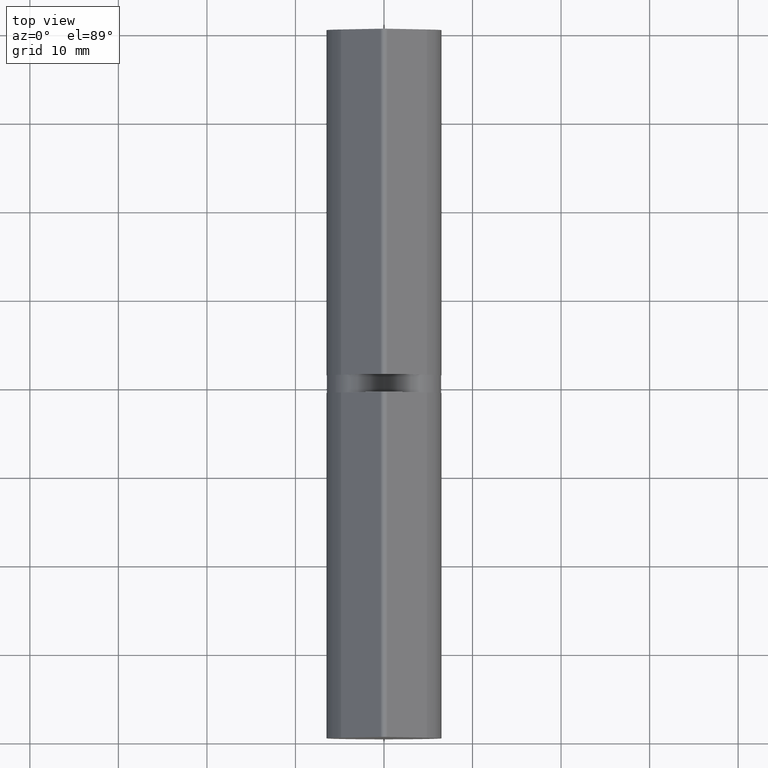
[diagram: clean part render]
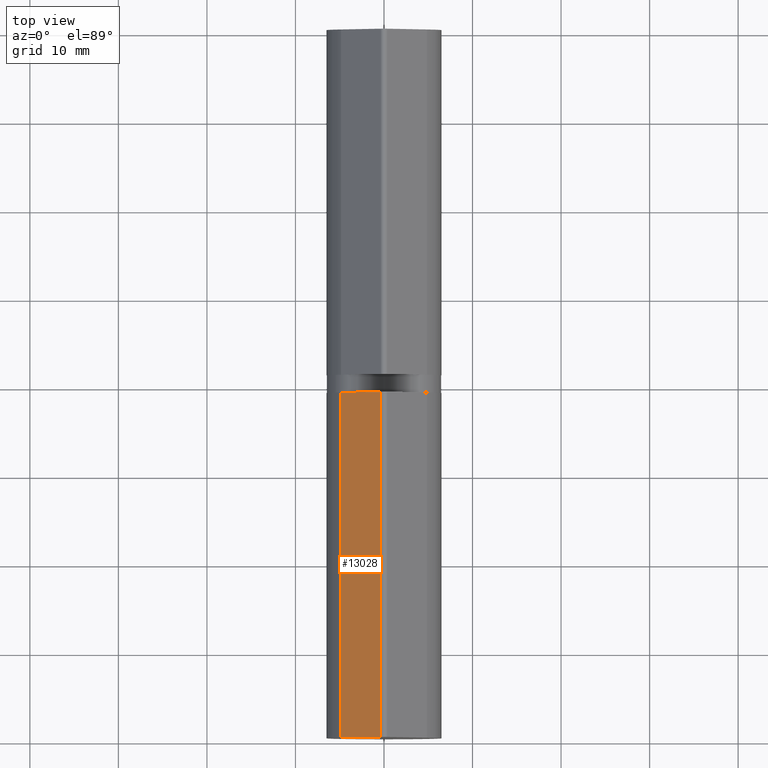
[diagram: same view with one face highlighted and labeled with its STEP entity id]
A machine part, top view. The second image highlights one B-rep face of the part: STEP entity #13028.
In plain terms, the highlighted planar face has unit normal (0.7454, 0, -0.6667).
Its self-contained STEP definition (entity closure, byte-faithful):
#617 = CARTESIAN_POINT ( 'NONE',  ( -4.844813951249543393, 19.50000000000000000, 4.333333333333332149 ) ) ;
#798 = LINE ( 'NONE', #5648, #4151 ) ;
#854 = FACE_OUTER_BOUND ( 'NONE', #12742, .T. ) ;
#1532 = LINE ( 'NONE', #7394, #7231 ) ;
#1894 = ORIENTED_EDGE ( 'NONE', *, *, #13289, .F. ) ;
#2202 = LINE ( 'NONE', #9259, #10726 ) ;
#2840 = DIRECTION ( 'NONE',  ( -0.000000000000000000, -1.000000000000000000, -0.000000000000000000 ) ) ;
#2867 = VERTEX_POINT ( 'NONE', #6100 ) ;
#2939 = CARTESIAN_POINT ( 'NONE',  ( -4.844813951249543393, 19.50000000000000000, 4.333333333333332149 ) ) ;
#2989 = DIRECTION ( 'NONE',  ( -0.000000000000000000, -1.000000000000000000, -0.000000000000000000 ) ) ;
#3048 = DIRECTION ( 'NONE',  ( -0.6666666666666666297, 0.000000000000000000, -0.7453559924999298980 ) ) ;
#3377 = VECTOR ( 'NONE', #12522, 1000.000000000000000 ) ;
#4151 = VECTOR ( 'NONE', #13179, 1000.000000000000000 ) ;
#4166 = EDGE_CURVE ( 'NONE', #2867, #10558, #798, .T. ) ;
#5097 = CARTESIAN_POINT ( 'NONE',  ( -0.3726779962499640608, 19.50000000000000000, 9.333333333333332149 ) ) ;
#5380 = VERTEX_POINT ( 'NONE', #5097 ) ;
#5648 = CARTESIAN_POINT ( 'NONE',  ( -4.844813951249543393, -19.50000000000000000, 4.333333333333332149 ) ) ;
#6100 = CARTESIAN_POINT ( 'NONE',  ( -4.844813951249543393, -19.50000000000000000, 4.333333333333332149 ) ) ;
#6147 = VERTEX_POINT ( 'NONE', #2939 ) ;
#6389 = EDGE_CURVE ( 'NONE', #6147, #2867, #1532, .T. ) ;
#7231 = VECTOR ( 'NONE', #2840, 1000.000000000000000 ) ;
#7382 = LINE ( 'NONE', #617, #3377 ) ;
#7394 = CARTESIAN_POINT ( 'NONE',  ( -4.844813951249543393, 19.50000000000000000, 4.333333333333332149 ) ) ;
#8465 = CARTESIAN_POINT ( 'NONE',  ( -4.844813951249543393, 19.50000000000000000, 4.333333333333332149 ) ) ;
#8699 = DIRECTION ( 'NONE',  ( 0.7453559924999298980, 0.000000000000000000, -0.6666666666666666297 ) ) ;
#9259 = CARTESIAN_POINT ( 'NONE',  ( -0.3726779962499640608, 19.50000000000000000, 9.333333333333332149 ) ) ;
#9600 = AXIS2_PLACEMENT_3D ( 'NONE', #8465, #8699, #3048 ) ;
#10558 = VERTEX_POINT ( 'NONE', #13443 ) ;
#10726 = VECTOR ( 'NONE', #2989, 1000.000000000000000 ) ;
#10894 = ORIENTED_EDGE ( 'NONE', *, *, #13326, .F. ) ;
#11198 = ORIENTED_EDGE ( 'NONE', *, *, #4166, .T. ) ;
#12175 = ORIENTED_EDGE ( 'NONE', *, *, #6389, .T. ) ;
#12522 = DIRECTION ( 'NONE',  ( 0.6666666666666666297, 0.000000000000000000, 0.7453559924999298980 ) ) ;
#12742 = EDGE_LOOP ( 'NONE', ( #11198, #1894, #10894, #12175 ) ) ;
#12958 = PLANE ( 'NONE',  #9600 ) ;
#13028 = ADVANCED_FACE ( 'NONE', ( #854 ), #12958, .F. ) ;
#13179 = DIRECTION ( 'NONE',  ( 0.6666666666666666297, 0.000000000000000000, 0.7453559924999298980 ) ) ;
#13289 = EDGE_CURVE ( 'NONE', #5380, #10558, #2202, .T. ) ;
#13326 = EDGE_CURVE ( 'NONE', #6147, #5380, #7382, .T. ) ;
#13443 = CARTESIAN_POINT ( 'NONE',  ( -0.3726779962499640608, -19.50000000000000000, 9.333333333333332149 ) ) ;